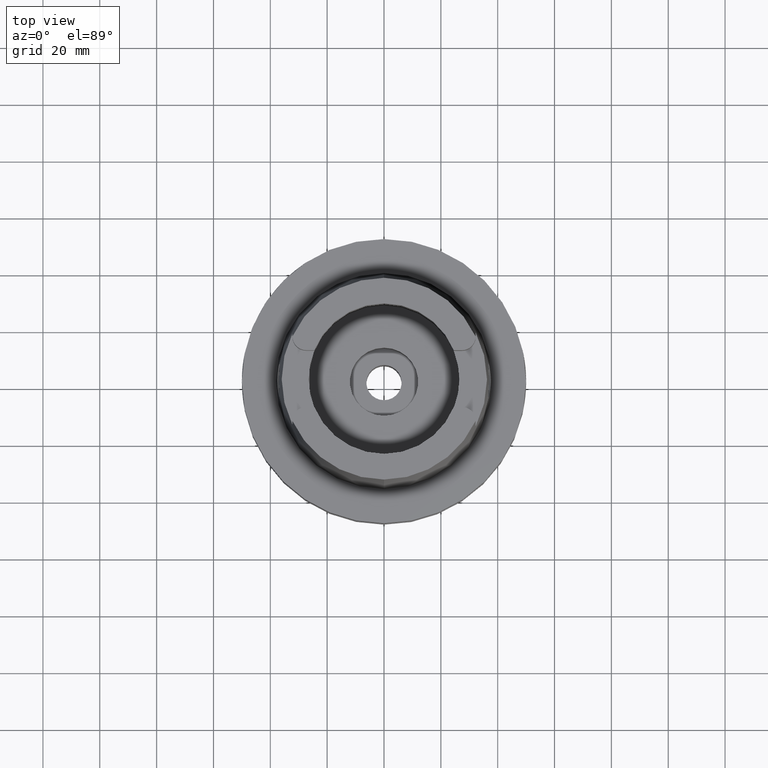
[diagram: clean part render]
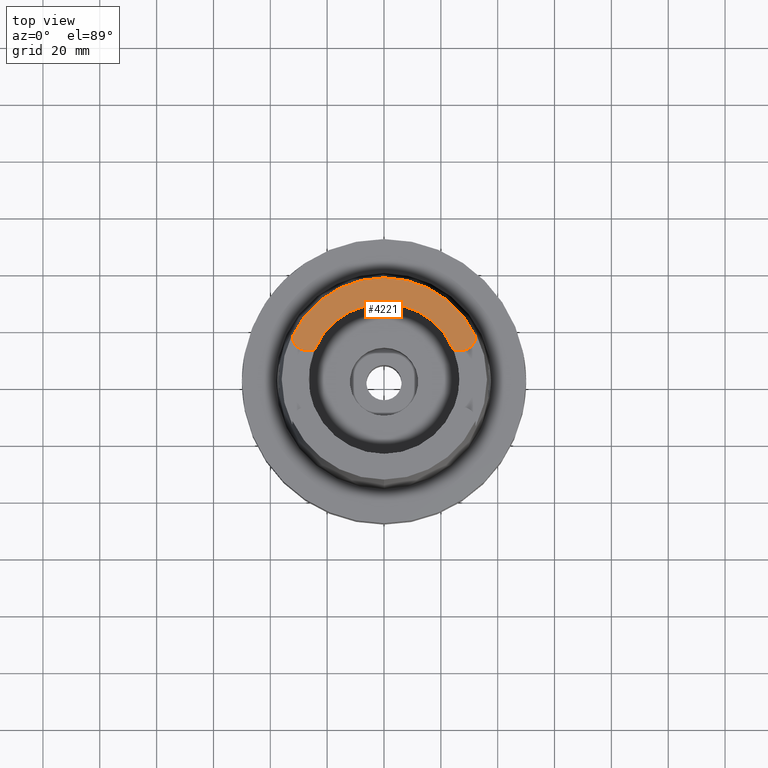
[diagram: same view with one face highlighted and labeled with its STEP entity id]
A machine part, top view. The second image highlights one B-rep face of the part: STEP entity #4221.
In plain terms, the highlighted planar face has unit normal (0, 0, 1).
Its self-contained STEP definition (entity closure, byte-faithful):
#17=CARTESIAN_POINT('',(-2.737E1,1.489E1,5.E1));
#18=DIRECTION('',(0.E0,0.E0,-1.E0));
#19=DIRECTION('',(0.E0,-1.E0,0.E0));
#20=AXIS2_PLACEMENT_3D('',#17,#18,#19);
#26=CARTESIAN_POINT('',(0.E0,0.E0,5.E1));
#27=DIRECTION('',(0.E0,0.E0,-1.E0));
#28=DIRECTION('',(-9.084449337998E-1,4.180045481253E-1,0.E0));
#29=AXIS2_PLACEMENT_3D('',#26,#27,#28);
#34=CARTESIAN_POINT('',(0.E0,0.E0,5.E1));
#35=DIRECTION('',(0.E0,0.E0,-1.E0));
#36=DIRECTION('',(0.E0,1.E0,0.E0));
#37=AXIS2_PLACEMENT_3D('',#34,#35,#36);
#42=CARTESIAN_POINT('',(2.737E1,1.489E1,5.E1));
#43=DIRECTION('',(0.E0,0.E0,-1.E0));
#44=DIRECTION('',(9.999456747286E-1,-1.042341553740E-2,0.E0));
#45=AXIS2_PLACEMENT_3D('',#42,#43,#44);
#50=CARTESIAN_POINT('',(0.E0,0.E0,5.E1));
#51=DIRECTION('',(0.E0,0.E0,1.E0));
#52=DIRECTION('',(9.259134021805E-1,3.777358490566E-1,0.E0));
#53=AXIS2_PLACEMENT_3D('',#50,#51,#52);
#58=CARTESIAN_POINT('',(0.E0,0.E0,5.E1));
#59=DIRECTION('',(0.E0,0.E0,1.E0));
#60=DIRECTION('',(0.E0,1.E0,0.E0));
#61=AXIS2_PLACEMENT_3D('',#58,#59,#60);
#80=DIRECTION('',(1.E0,1.429464217237E-13,0.E0));
#81=VECTOR('',#80,2.833294842218E0);
#82=CARTESIAN_POINT('',(-2.737E1,1.001E1,5.E1));
#83=LINE('',#82,#81);
#3648=DIRECTION('',(1.E0,-1.423194637337E-13,0.E0));
#3649=VECTOR('',#3648,2.833294842218E0);
#3650=CARTESIAN_POINT('',(2.453670515778E1,1.001E1,5.E1));
#3651=LINE('',#3650,#3649);
#3669=CARTESIAN_POINT('',(-2.737E1,1.001E1,5.E1));
#3670=CARTESIAN_POINT('',(-3.224973489268E1,1.483913373218E1,5.E1));
#3671=VERTEX_POINT('',#3669);
#3672=VERTEX_POINT('',#3670);
#3673=CARTESIAN_POINT('',(0.E0,3.549993366992E1,5.E1));
#3674=VERTEX_POINT('',#3673);
#3675=CARTESIAN_POINT('',(3.224973489267E1,1.483913373218E1,5.E1));
#3676=VERTEX_POINT('',#3675);
#3677=CARTESIAN_POINT('',(2.737E1,1.001E1,5.E1));
#3678=VERTEX_POINT('',#3677);
#3679=CARTESIAN_POINT('',(2.453670515778E1,1.001E1,5.E1));
#3680=VERTEX_POINT('',#3679);
#3681=CARTESIAN_POINT('',(0.E0,2.65E1,5.E1));
#3682=VERTEX_POINT('',#3681);
#3683=CARTESIAN_POINT('',(-2.453670515778E1,1.001E1,5.E1));
#3684=VERTEX_POINT('',#3683);
#4198=CARTESIAN_POINT('',(0.E0,0.E0,5.E1));
#4199=DIRECTION('',(0.E0,0.E0,1.E0));
#4200=DIRECTION('',(0.E0,1.E0,0.E0));
#4201=AXIS2_PLACEMENT_3D('',#4198,#4199,#4200);
#4202=PLANE('',#4201);
#4204=ORIENTED_EDGE('',*,*,#4203,.T.);
#4206=ORIENTED_EDGE('',*,*,#4205,.T.);
#4208=ORIENTED_EDGE('',*,*,#4207,.T.);
#4210=ORIENTED_EDGE('',*,*,#4209,.T.);
#4212=ORIENTED_EDGE('',*,*,#4211,.F.);
#4214=ORIENTED_EDGE('',*,*,#4213,.T.);
#4216=ORIENTED_EDGE('',*,*,#4215,.T.);
#4218=ORIENTED_EDGE('',*,*,#4217,.F.);
#4219=EDGE_LOOP('',(#4204,#4206,#4208,#4210,#4212,#4214,#4216,#4218));
#4220=FACE_OUTER_BOUND('',#4219,.F.);
#21=CIRCLE('',#20,4.88E0);
#30=CIRCLE('',#29,3.549993366992E1);
#38=CIRCLE('',#37,3.549993366992E1);
#46=CIRCLE('',#45,4.88E0);
#54=CIRCLE('',#53,2.65E1);
#62=CIRCLE('',#61,2.65E1);
#4203=EDGE_CURVE('',#3671,#3672,#21,.T.);
#4205=EDGE_CURVE('',#3672,#3674,#30,.T.);
#4207=EDGE_CURVE('',#3674,#3676,#38,.T.);
#4209=EDGE_CURVE('',#3676,#3678,#46,.T.);
#4211=EDGE_CURVE('',#3680,#3678,#3651,.T.);
#4213=EDGE_CURVE('',#3680,#3682,#54,.T.);
#4215=EDGE_CURVE('',#3682,#3684,#62,.T.);
#4217=EDGE_CURVE('',#3671,#3684,#83,.T.);
#4221=ADVANCED_FACE('',(#4220),#4202,.T.);